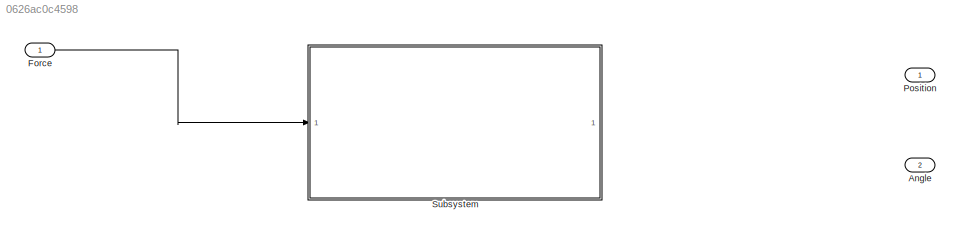
MODEL slx_0626ac0c4598
KIND model
CONFIG AbsTol = auto
CONFIG EnableMultiTasking = off
CONFIG FixedStep = auto
CONFIG MaxStep = auto
CONFIG MinStep = auto
CONFIG RelTol = 1e-3
CONFIG SampleTimeConstraint = Unconstrained
CONFIG SolverName = VariableStepAuto
CONFIG StartTime = 0.0
CONFIG StopTime = 10.0
WORKSPACE source: mxarray member
WORKSPACE C = [1 0 0 0 0 1 0 0]
WORKSPACE D = [0 0]
WORKSPACE I = 0.006
WORKSPACE M = 0.5
WORKSPACE b = 0.1
WORKSPACE g = 9.8
WORKSPACE l = 0.3
WORKSPACE m = 0.2
BLOCK [Outport] Angle
  Port = 2
BLOCK [Inport] Force
BLOCK [Outport] Position
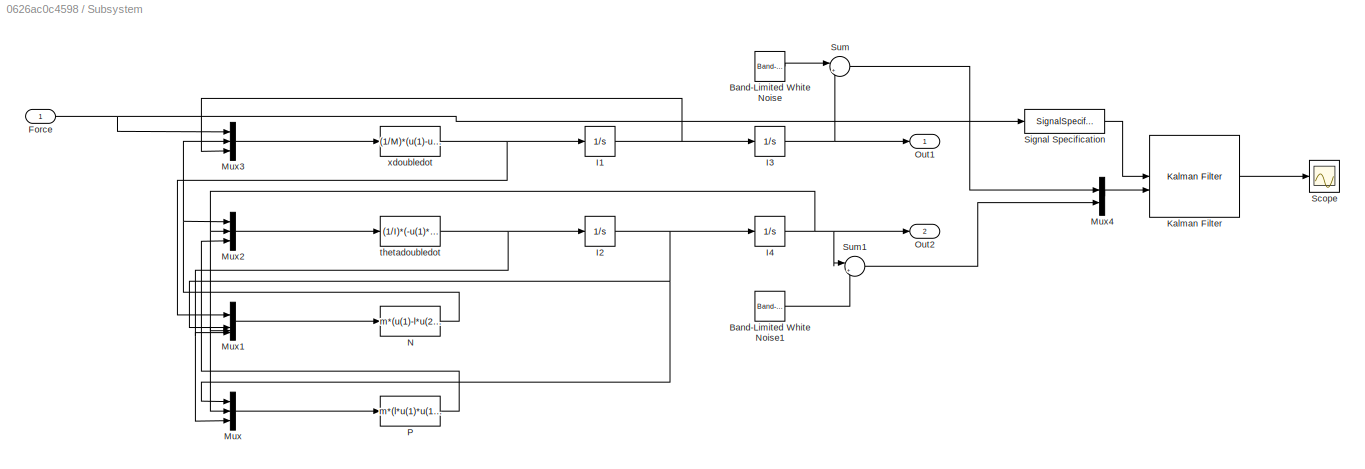
BLOCK [SubSystem] Subsystem
  InitFcn = % Load physical parameters\nM = 0.5;\nm = 0.2;\nl = 0.3;\nI = 0.006;\nb = 0.1;\ng = 9.8;\n\n% Composite moment\np = I*(M + m) + M*m*l^2;\n\n% State-space matrices\nA = [0 1 0 0;\n     0 -((I + m*l^2)*b)/p (m^2 * g * l^2)/p 0;\n     0 0 0 1;\n     0 -(m * l * b)/p m * g * l * (M + m)/p 0];\n\nB = [0;\n     (I + m * l^2)/p;\n     0;\n     m * l / p];\n\nC = [1 0 0 0;\n     0 0 1 0];\n\nD = [0;\n     0];
  LoadFcn = M = 0.5;\nm = 0.2;\nl = 0.3;\nI = 0.006;\nb = 0.1;\ng = 9.8;\n\np = I*(M + m) + M*m*l^2;\n\nA = [ 0 1 0 0;\n      0 -((I + m*l^2)*b)/p (m^2 * g * l^2)/p 0;\n      0 0 0 1;\n      0 -(m * l * b)/p m * g * l * (M + m)/p 0 ];\n\nB = [ 0;\n      (I + m * l^2)/p;\n      0;\n      (m * l)/p ];\n\nC = [1 0 0 0;\n     0 0 1 0];\n\nD = [0; 0];
BLOCK [Reference] Subsystem/Band-Limited White Noise  REF=simulink/Sources/Band-Limited
White Noise
  SourceBlock = simulink/Sources/Band-Limited\nWhite Noise
  SourceType = Band-Limited White Noise.
BLOCK [Reference] Subsystem/Band-Limited White Noise1  REF=simulink/Sources/Band-Limited
White Noise
  SourceBlock = simulink/Sources/Band-Limited\nWhite Noise
  SourceType = Band-Limited White Noise.
BLOCK [Inport] Subsystem/Force
BLOCK [Integrator] Subsystem/I1
BLOCK [Integrator] Subsystem/I2
  InitialCondition = pi
BLOCK [Integrator] Subsystem/I3
BLOCK [Integrator] Subsystem/I4
  InitialCondition = pi
BLOCK [Reference] Subsystem/Kalman Filter  REF=ctrlSharedLib/Kalman Filter
  LibrarySourceBlock = cstblocks/State Estimation/Kalman Filter
  SourceBlock = ctrlSharedLib/Kalman Filter
  SourceType = ctrlKalmanFilter
BLOCK [Mux] Subsystem/Mux
  DisplayOption = bar
  Inputs = 3
BLOCK [Mux] Subsystem/Mux1
  DisplayOption = bar
BLOCK [Mux] Subsystem/Mux2
  DisplayOption = bar
  Inputs = 3
BLOCK [Mux] Subsystem/Mux3
  DisplayOption = bar
  Inputs = 3
BLOCK [Mux] Subsystem/Mux4
  DisplayOption = bar
  Inputs = 2
BLOCK [Fcn] Subsystem/N
  Expr = m*(u(1)-l*u(2)*u(2)*sin(u(3))+l*u(4)*cos(u(3)))
BLOCK [Outport] Subsystem/Out1
BLOCK [Outport] Subsystem/Out2
  Port = 2
BLOCK [Fcn] Subsystem/P
  Expr = m*(l*u(1)*u(1)*cos(u(2)) + l*u(3)*sin(u(2)) + g)
BLOCK [Scope] Subsystem/Scope
  Floating = off
  NumInputPorts = 1
  ScopeSpecificationString = Simulink.scopes.TimeScopeBlockCfg('CurrentConfiguration', extmgr.ConfigurationSet(extmgr.Configuration('Core','General UI',true),extmgr.Configuration('Core','Source UI',true),extmgr.Configuration('Sources','WiredSimulink',true),extmgr.Configuration('Visuals','Time Domain',true,'SerializedDisplays',{struct('MinYLimReal','-48.56574','MaxYLimReal','437.09164','YLabelReal','','MinYLimMag','0.00000','M...<+1554ch>
BLOCK [SignalSpecification] Subsystem/Signal Specification
  Dimensions = 1
BLOCK [Sum] Subsystem/Sum
  Inputs = |++
BLOCK [Sum] Subsystem/Sum1
  Inputs = |++
BLOCK [Fcn] Subsystem/thetadoubledot
  Expr = (1/I)*(-u(1)*l*cos(u(2))-u(3)*l*sin(u(2)))
BLOCK [Fcn] Subsystem/xdoubledot
  Expr = (1/M)*(u(1)-u(2)-b*u(3))
LINE Force:1 -> Subsystem:1
LINE Subsystem/Band-Limited White Noise1:1 -> Subsystem/Sum1:2
LINE Subsystem/Band-Limited White Noise:1 -> Subsystem/Sum:1
NET Subsystem/Force:1 -> Subsystem/Mux3:1, Subsystem/Signal Specification:1
NET Subsystem/I1:1 -> Subsystem/I3:1, Subsystem/Mux3:3
NET Subsystem/I2:1 -> Subsystem/I4:1, Subsystem/Mux1:2, Subsystem/Mux:1
NET Subsystem/I3:1 -> Subsystem/Out1:1, Subsystem/Sum:2
NET Subsystem/I4:1 -> Subsystem/Mux1:3, Subsystem/Mux2:2, Subsystem/Mux:2, Subsystem/Out2:1, Subsystem/Sum1:1
LINE Subsystem/Kalman Filter:1 -> Subsystem/Scope:1
LINE Subsystem/Mux1:1 -> Subsystem/N:1
LINE Subsystem/Mux2:1 -> Subsystem/thetadoubledot:1
LINE Subsystem/Mux3:1 -> Subsystem/xdoubledot:1
LINE Subsystem/Mux4:1 -> Subsystem/Kalman Filter:2
LINE Subsystem/Mux:1 -> Subsystem/P:1
NET Subsystem/N:1 -> Subsystem/Mux2:1, Subsystem/Mux3:2
LINE Subsystem/P:1 -> Subsystem/Mux2:3
LINE Subsystem/Signal Specification:1 -> Subsystem/Kalman Filter:1
LINE Subsystem/Sum1:1 -> Subsystem/Mux4:2
LINE Subsystem/Sum:1 -> Subsystem/Mux4:1
NET Subsystem/thetadoubledot:1 -> Subsystem/I2:1, Subsystem/Mux1:4, Subsystem/Mux:3
NET Subsystem/xdoubledot:1 -> Subsystem/I1:1, Subsystem/Mux1:1
note: NET lines group one-source signal fan-out (src -> all destinations, sorted); 1:1 wires keep LINE
